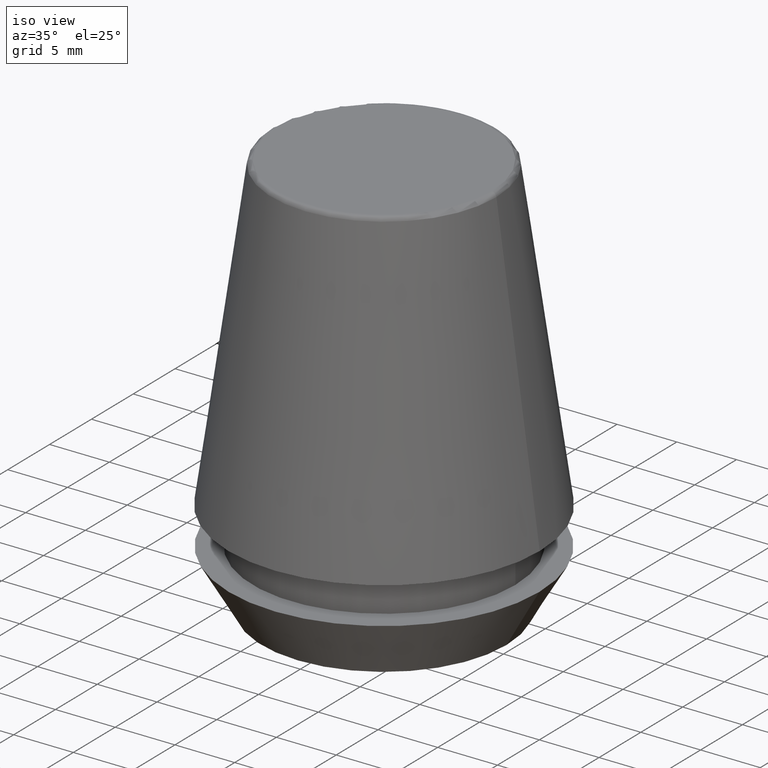
[diagram: clean part render]
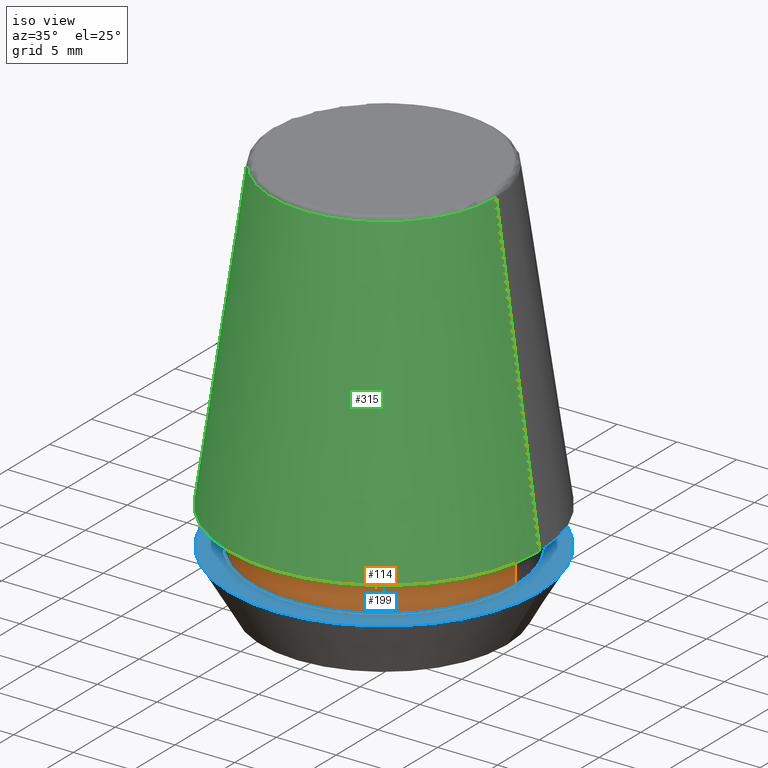
[diagram: same view with three faces highlighted in distinct colors, each labeled with its STEP entity id]
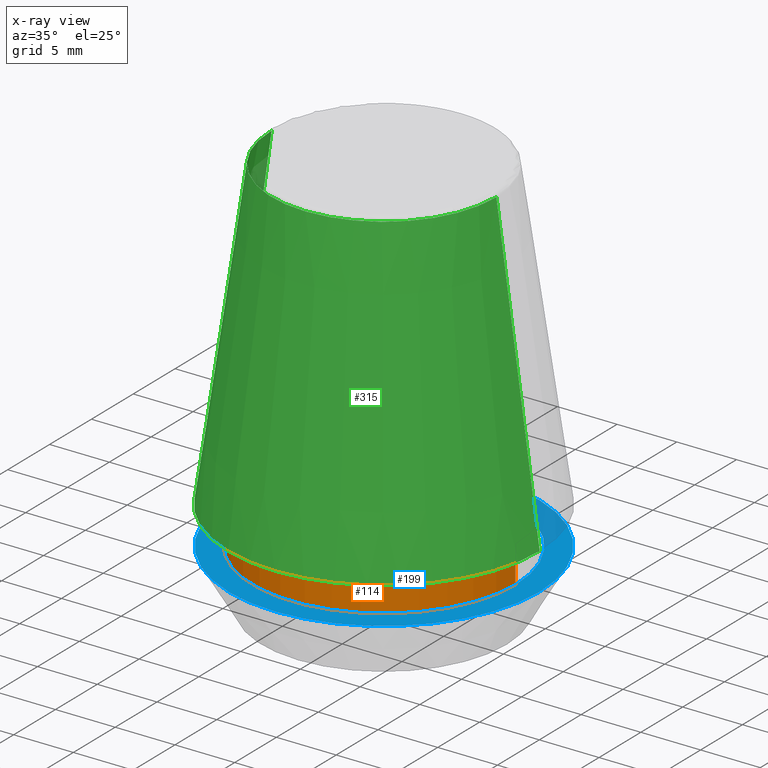
[diagram: x-ray of the same camera — body ghosted, the three highlighted faces saturated]
A machine part, iso view with three faces highlighted in distinct colors.
The next image is the same camera in x-ray (body ghosted, the three faces saturated) — at least one of them is partly hidden behind the body in this view.
Their STEP definitions:

[orange] entity #114 — the highlighted cylindrical surface (partial cylindrical patch) has radius 11 mm, axis along (-0, -0, 1).
#7 = DIRECTION ( 'NONE',  ( -0.0000000000000000000, -0.0000000000000000000, 1.000000000000000000 ) ) ;
#24 = CARTESIAN_POINT ( 'NONE',  ( -11.00000000000000000, 1.347111479062088400E-015, 101.8074564848000400 ) ) ;
#28 = ORIENTED_EDGE ( 'NONE', *, *, #64, .T. ) ;
#39 = EDGE_CURVE ( 'NONE', #247, #370, #96, .T. ) ;
#41 = DIRECTION ( 'NONE',  ( 1.000000000000000000, 0.0000000000000000000, 0.0000000000000000000 ) ) ;
#47 = CARTESIAN_POINT ( 'NONE',  ( -11.00000000000000000, 1.347111479062088400E-015, 7.842050807568890400 ) ) ;
#53 = ORIENTED_EDGE ( 'NONE', *, *, #357, .F. ) ;
#64 = EDGE_CURVE ( 'NONE', #174, #247, #109, .T. ) ;
#66 = CYLINDRICAL_SURFACE ( 'NONE', #156, 11.00000000000000000 ) ;
#68 = VERTEX_POINT ( 'NONE', #47 ) ;
#80 = LINE ( 'NONE', #24, #142 ) ;
#92 = CIRCLE ( 'NONE', #328, 11.00000000000000000 ) ;
#96 = LINE ( 'NONE', #167, #311 ) ;
#103 = DIRECTION ( 'NONE',  ( 1.000000000000000000, 0.0000000000000000000, 0.0000000000000000000 ) ) ;
#109 = CIRCLE ( 'NONE', #217, 11.00000000000000000 ) ;
#114 = ADVANCED_FACE ( 'NONE', ( #203 ), #66, .T. ) ;
#120 = CARTESIAN_POINT ( 'NONE',  ( 11.00000000000000000, 0.0000000000000000000, 7.842050807568890400 ) ) ;
#128 = CARTESIAN_POINT ( 'NONE',  ( -11.00000000000000000, 1.347111479062088400E-015, 4.742050807568884500 ) ) ;
#131 = CARTESIAN_POINT ( 'NONE',  ( 0.0000000000000000000, 0.0000000000000000000, 101.8074564848000400 ) ) ;
#142 = VECTOR ( 'NONE', #162, 1000.000000000000000 ) ;
#147 = EDGE_LOOP ( 'NONE', ( #53, #28, #309, #375 ) ) ;
#156 = AXIS2_PLACEMENT_3D ( 'NONE', #131, #7, #103 ) ;
#162 = DIRECTION ( 'NONE',  ( -0.0000000000000000000, -0.0000000000000000000, 1.000000000000000000 ) ) ;
#167 = CARTESIAN_POINT ( 'NONE',  ( 11.00000000000000000, 0.0000000000000000000, 101.8074564848000400 ) ) ;
#174 = VERTEX_POINT ( 'NONE', #128 ) ;
#203 = FACE_OUTER_BOUND ( 'NONE', #147, .T. ) ;
#217 = AXIS2_PLACEMENT_3D ( 'NONE', #242, #301, #41 ) ;
#242 = CARTESIAN_POINT ( 'NONE',  ( 0.0000000000000000000, 0.0000000000000000000, 4.742050807568884500 ) ) ;
#247 = VERTEX_POINT ( 'NONE', #358 ) ;
#261 = DIRECTION ( 'NONE',  ( 1.000000000000000000, 0.0000000000000000000, 0.0000000000000000000 ) ) ;
#267 = DIRECTION ( 'NONE',  ( -0.0000000000000000000, -0.0000000000000000000, 1.000000000000000000 ) ) ;
#301 = DIRECTION ( 'NONE',  ( -0.0000000000000000000, -0.0000000000000000000, 1.000000000000000000 ) ) ;
#302 = EDGE_CURVE ( 'NONE', #68, #370, #92, .T. ) ;
#309 = ORIENTED_EDGE ( 'NONE', *, *, #39, .T. ) ;
#311 = VECTOR ( 'NONE', #267, 1000.000000000000000 ) ;
#328 = AXIS2_PLACEMENT_3D ( 'NONE', #344, #381, #261 ) ;
#344 = CARTESIAN_POINT ( 'NONE',  ( 0.0000000000000000000, 0.0000000000000000000, 7.842050807568890400 ) ) ;
#357 = EDGE_CURVE ( 'NONE', #174, #68, #80, .T. ) ;
#358 = CARTESIAN_POINT ( 'NONE',  ( 11.00000000000000000, 0.0000000000000000000, 4.742050807568884500 ) ) ;
#370 = VERTEX_POINT ( 'NONE', #120 ) ;
#375 = ORIENTED_EDGE ( 'NONE', *, *, #302, .F. ) ;
#381 = DIRECTION ( 'NONE',  ( -0.0000000000000000000, -0.0000000000000000000, 1.000000000000000000 ) ) ;

[blue] entity #199 — the highlighted planar face has unit normal (0, 0, -1).
#5 = CARTESIAN_POINT ( 'NONE',  ( 0.0000000000000000000, 13.00000000000000000, 4.742050807568884500 ) ) ;
#34 = DIRECTION ( 'NONE',  ( 1.000000000000000000, 0.0000000000000000000, 0.0000000000000000000 ) ) ;
#36 = DIRECTION ( 'NONE',  ( -1.000000000000000000, 0.0000000000000000000, -0.0000000000000000000 ) ) ;
#41 = DIRECTION ( 'NONE',  ( 1.000000000000000000, 0.0000000000000000000, 0.0000000000000000000 ) ) ;
#45 = CARTESIAN_POINT ( 'NONE',  ( 0.0000000000000000000, 0.0000000000000000000, 4.742050807568884500 ) ) ;
#55 = DIRECTION ( 'NONE',  ( -0.0000000000000000000, -0.0000000000000000000, 1.000000000000000000 ) ) ;
#64 = EDGE_CURVE ( 'NONE', #174, #247, #109, .T. ) ;
#65 = DIRECTION ( 'NONE',  ( -0.0000000000000000000, -0.0000000000000000000, 1.000000000000000000 ) ) ;
#77 = DIRECTION ( 'NONE',  ( 1.000000000000000000, 0.0000000000000000000, 0.0000000000000000000 ) ) ;
#84 = EDGE_LOOP ( 'NONE', ( #325, #210 ) ) ;
#90 = CIRCLE ( 'NONE', #347, 11.00000000000000000 ) ;
#99 = CARTESIAN_POINT ( 'NONE',  ( 0.0000000000000000000, 0.0000000000000000000, 4.742050807568884500 ) ) ;
#101 = CARTESIAN_POINT ( 'NONE',  ( -13.00000000000000000, 1.592040838891559100E-015, 4.742050807568884500 ) ) ;
#109 = CIRCLE ( 'NONE', #217, 11.00000000000000000 ) ;
#112 = CARTESIAN_POINT ( 'NONE',  ( 13.00000000000000000, 0.0000000000000000000, 4.742050807568884500 ) ) ;
#128 = CARTESIAN_POINT ( 'NONE',  ( -11.00000000000000000, 1.347111479062088400E-015, 4.742050807568884500 ) ) ;
#160 = CIRCLE ( 'NONE', #312, 13.00000000000000000 ) ;
#174 = VERTEX_POINT ( 'NONE', #128 ) ;
#179 = CIRCLE ( 'NONE', #263, 13.00000000000000000 ) ;
#182 = CARTESIAN_POINT ( 'NONE',  ( 0.0000000000000000000, 0.0000000000000000000, 4.742050807568884500 ) ) ;
#192 = FACE_OUTER_BOUND ( 'NONE', #84, .T. ) ;
#199 = ADVANCED_FACE ( 'NONE', ( #276, #192 ), #211, .F. ) ;
#204 = EDGE_LOOP ( 'NONE', ( #327, #290 ) ) ;
#210 = ORIENTED_EDGE ( 'NONE', *, *, #310, .T. ) ;
#211 = PLANE ( 'NONE',  #352 ) ;
#215 = DIRECTION ( 'NONE',  ( 1.000000000000000000, 0.0000000000000000000, 0.0000000000000000000 ) ) ;
#217 = AXIS2_PLACEMENT_3D ( 'NONE', #242, #301, #41 ) ;
#222 = VERTEX_POINT ( 'NONE', #101 ) ;
#239 = DIRECTION ( 'NONE',  ( -0.0000000000000000000, -0.0000000000000000000, 1.000000000000000000 ) ) ;
#242 = CARTESIAN_POINT ( 'NONE',  ( 0.0000000000000000000, 0.0000000000000000000, 4.742050807568884500 ) ) ;
#247 = VERTEX_POINT ( 'NONE', #358 ) ;
#263 = AXIS2_PLACEMENT_3D ( 'NONE', #99, #65, #34 ) ;
#276 = FACE_BOUND ( 'NONE', #204, .T. ) ;
#290 = ORIENTED_EDGE ( 'NONE', *, *, #64, .F. ) ;
#294 = EDGE_CURVE ( 'NONE', #387, #222, #179, .T. ) ;
#295 = DIRECTION ( 'NONE',  ( 0.0000000000000000000, 0.0000000000000000000, -1.000000000000000000 ) ) ;
#301 = DIRECTION ( 'NONE',  ( -0.0000000000000000000, -0.0000000000000000000, 1.000000000000000000 ) ) ;
#310 = EDGE_CURVE ( 'NONE', #222, #387, #160, .T. ) ;
#312 = AXIS2_PLACEMENT_3D ( 'NONE', #182, #239, #215 ) ;
#317 = EDGE_CURVE ( 'NONE', #247, #174, #90, .T. ) ;
#325 = ORIENTED_EDGE ( 'NONE', *, *, #294, .T. ) ;
#327 = ORIENTED_EDGE ( 'NONE', *, *, #317, .F. ) ;
#347 = AXIS2_PLACEMENT_3D ( 'NONE', #45, #55, #77 ) ;
#352 = AXIS2_PLACEMENT_3D ( 'NONE', #5, #295, #36 ) ;
#358 = CARTESIAN_POINT ( 'NONE',  ( 11.00000000000000000, 0.0000000000000000000, 4.742050807568884500 ) ) ;
#387 = VERTEX_POINT ( 'NONE', #112 ) ;

[green] entity #315 — the highlighted conical surface has half-angle 8 deg.
#10 = DIRECTION ( 'NONE',  ( -0.0000000000000000000, -0.0000000000000000000, 1.000000000000000000 ) ) ;
#11 = DIRECTION ( 'NONE',  ( -0.0000000000000000000, -0.0000000000000000000, 1.000000000000000000 ) ) ;
#14 = ORIENTED_EDGE ( 'NONE', *, *, #316, .F. ) ;
#33 = AXIS2_PLACEMENT_3D ( 'NONE', #82, #11, #371 ) ;
#56 = LINE ( 'NONE', #291, #126 ) ;
#62 = VERTEX_POINT ( 'NONE', #303 ) ;
#75 = ORIENTED_EDGE ( 'NONE', *, *, #288, .F. ) ;
#79 = CARTESIAN_POINT ( 'NONE',  ( 0.0000000000000000000, 0.0000000000000000000, 33.65566924038402900 ) ) ;
#81 = DIRECTION ( 'NONE',  ( 1.000000000000000000, 0.0000000000000000000, 0.0000000000000000000 ) ) ;
#82 = CARTESIAN_POINT ( 'NONE',  ( 0.0000000000000000000, 0.0000000000000000000, 7.842050807568876200 ) ) ;
#102 = VERTEX_POINT ( 'NONE', #331 ) ;
#124 = VERTEX_POINT ( 'NONE', #241 ) ;
#126 = VECTOR ( 'NONE', #149, 1000.000000000000000 ) ;
#148 = DIRECTION ( 'NONE',  ( -0.1391731009600587800, 0.0000000000000000000, -0.9902680687415712500 ) ) ;
#149 = DIRECTION ( 'NONE',  ( 0.1391731009600587800, 1.704378926181474000E-017, -0.9902680687415712500 ) ) ;
#161 = CARTESIAN_POINT ( 'NONE',  ( -13.03657776635556700, 0.0000000000000000000, 7.842050807568876200 ) ) ;
#164 = CIRCLE ( 'NONE', #33, 13.03657776635556700 ) ;
#186 = ORIENTED_EDGE ( 'NONE', *, *, #366, .T. ) ;
#197 = DIRECTION ( 'NONE',  ( -1.000000000000000000, 0.0000000000000000000, 0.0000000000000000000 ) ) ;
#201 = CARTESIAN_POINT ( 'NONE',  ( 0.0000000000000000000, 0.0000000000000000000, 7.842050807568876200 ) ) ;
#206 = AXIS2_PLACEMENT_3D ( 'NONE', #79, #10, #81 ) ;
#216 = LINE ( 'NONE', #161, #281 ) ;
#219 = CARTESIAN_POINT ( 'NONE',  ( -13.03657776635556700, 0.0000000000000000000, 7.842050807568876200 ) ) ;
#227 = CONICAL_SURFACE ( 'NONE', #332, 13.03657776635556700, 0.1396263401595396500 ) ;
#241 = CARTESIAN_POINT ( 'NONE',  ( 9.408710285118862900, 1.374377508408924700E-015, 33.65566924038402900 ) ) ;
#248 = FACE_OUTER_BOUND ( 'NONE', #271, .T. ) ;
#265 = DIRECTION ( 'NONE',  ( 0.0000000000000000000, 0.0000000000000000000, -1.000000000000000000 ) ) ;
#271 = EDGE_LOOP ( 'NONE', ( #75, #14, #186, #346 ) ) ;
#281 = VECTOR ( 'NONE', #148, 1000.000000000000000 ) ;
#288 = EDGE_CURVE ( 'NONE', #124, #62, #56, .T. ) ;
#291 = CARTESIAN_POINT ( 'NONE',  ( 13.03657776635556700, 1.596520323340289600E-015, 7.842050807568876200 ) ) ;
#303 = CARTESIAN_POINT ( 'NONE',  ( 13.03657776635556700, 1.596520323340289600E-015, 7.842050807568876200 ) ) ;
#304 = CIRCLE ( 'NONE', #206, 9.408710285118862900 ) ;
#315 = ADVANCED_FACE ( 'NONE', ( #248 ), #227, .T. ) ;
#316 = EDGE_CURVE ( 'NONE', #102, #124, #304, .T. ) ;
#322 = EDGE_CURVE ( 'NONE', #340, #62, #164, .T. ) ;
#331 = CARTESIAN_POINT ( 'NONE',  ( -9.408710285118862900, 0.0000000000000000000, 33.65566924038402900 ) ) ;
#332 = AXIS2_PLACEMENT_3D ( 'NONE', #201, #265, #197 ) ;
#340 = VERTEX_POINT ( 'NONE', #219 ) ;
#346 = ORIENTED_EDGE ( 'NONE', *, *, #322, .T. ) ;
#366 = EDGE_CURVE ( 'NONE', #102, #340, #216, .T. ) ;
#371 = DIRECTION ( 'NONE',  ( 1.000000000000000000, 0.0000000000000000000, 0.0000000000000000000 ) ) ;